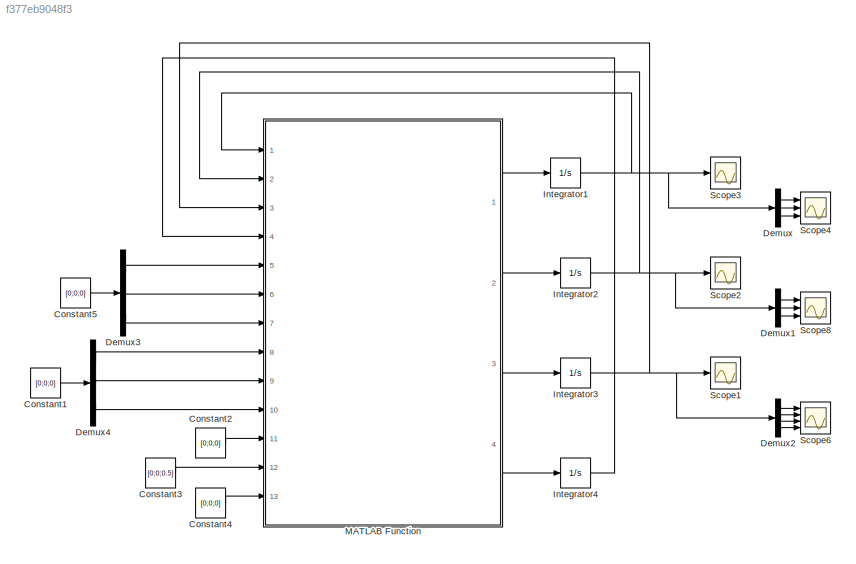
MODEL slx_f377eb9048f3
KIND model
CONFIG AbsTol = auto
CONFIG EnableMultiTasking = off
CONFIG FixedStep = auto
CONFIG MaxStep = auto
CONFIG MinStep = auto
CONFIG RelTol = 1e-3
CONFIG SampleTimeConstraint = Unconstrained
CONFIG SolverName = VariableStepAuto
CONFIG StartTime = 0.0
CONFIG StopTime = 10.0
BLOCK [Constant] Constant1
  Value = [0;0;0]
  VectorParams1D = off
BLOCK [Constant] Constant2
  Value = [0;0;0]
  VectorParams1D = off
BLOCK [Constant] Constant3
  Value = [0;0;0.5]
  VectorParams1D = off
BLOCK [Constant] Constant4
  Value = [0;0;0]
  VectorParams1D = off
BLOCK [Constant] Constant5
  Value = [0;0;0]
  VectorParams1D = off
BLOCK [Demux] Demux
  Outputs = 3
  Ports = [1, 3]
BLOCK [Demux] Demux1
  Outputs = 3
  Ports = [1, 3]
BLOCK [Demux] Demux2
  Ports = [1, 4]
BLOCK [Demux] Demux3
  Outputs = 3
  Ports = [1, 3]
BLOCK [Demux] Demux4
  Outputs = 3
  Ports = [1, 3]
BLOCK [Integrator] Integrator1
  InitialCondition = [0;0;0]
  Ports = [1, 1]
BLOCK [Integrator] Integrator2
  InitialCondition = [0;0;0]
  Ports = [1, 1]
BLOCK [Integrator] Integrator3
  InitialCondition = [0;0;0;0]
  Ports = [1, 1]
BLOCK [Integrator] Integrator4
  InitialCondition = [0;0;0]
  Ports = [1, 1]
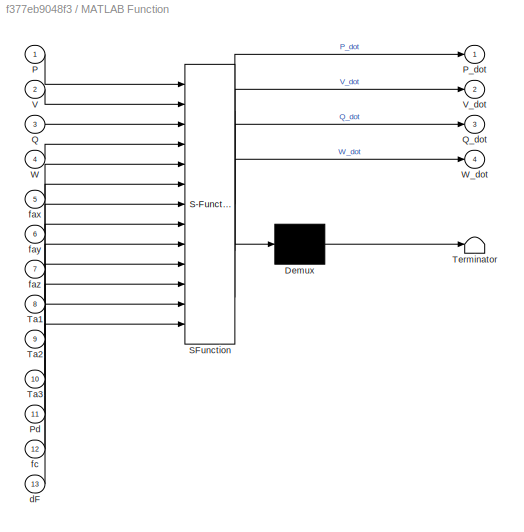
BLOCK [SubSystem] MATLAB Function
  ErrorFcn = Stateflow.Translate.translate
  PermitHierarchicalResolution = ExplicitOnly
  Ports = [13, 4]
  RequestExecContextInheritance = off
  SFBlockType = MATLAB Function
  TreatAsAtomicUnit = on
BLOCK [Demux] MATLAB Function/ Demux 
  Outputs = 1
  Ports = [1, 1]
BLOCK [S-Function] MATLAB Function/ SFunction 
  EnableBusSupport = on
  FunctionName = sf_sfun
  PortCounts = [13 5]
  Ports = [13, 5]
  SFcnIsStateOwnerBlock = off
  SFunctionDeploymentMode = off
  Tag = Stateflow S-Function 2
BLOCK [Terminator] MATLAB Function/ Terminator 
BLOCK [Inport] MATLAB Function/P
BLOCK [Outport] MATLAB Function/P_dot
BLOCK [Inport] MATLAB Function/Pd
  Port = 11
BLOCK [Inport] MATLAB Function/Q
  Port = 3
BLOCK [Outport] MATLAB Function/Q_dot
  Port = 3
BLOCK [Inport] MATLAB Function/Ta1
  Port = 8
BLOCK [Inport] MATLAB Function/Ta2
  Port = 9
BLOCK [Inport] MATLAB Function/Ta3
  Port = 10
BLOCK [Inport] MATLAB Function/V
  Port = 2
BLOCK [Outport] MATLAB Function/V_dot
  Port = 2
BLOCK [Inport] MATLAB Function/W
  Port = 4
BLOCK [Outport] MATLAB Function/W_dot
  Port = 4
BLOCK [Inport] MATLAB Function/dF
  Port = 13
BLOCK [Inport] MATLAB Function/fax
  Port = 5
BLOCK [Inport] MATLAB Function/fay
  Port = 6
BLOCK [Inport] MATLAB Function/faz
  Port = 7
BLOCK [Inport] MATLAB Function/fc
  Port = 12
BLOCK [Scope] Scope1
  Floating = off
  NumInputPorts = 1
  Ports = [1]
  ScopeSpecificationString = Simulink.scopes.TimeScopeBlockCfg('CurrentConfiguration', extmgr.ConfigurationSet(extmgr.Configuration('Core','General UI',true),extmgr.Configuration('Core','Source UI',true),extmgr.Configuration('Sources','WiredSimulink',true,'DataLoggingVariableName','ScopeData1'),extmgr.Configuration('Visuals','Time Domain',true,'SerializedDisplays',{struct('MinYLimReal','-1.00000','MaxYLimReal','1.00000','YLab...<+1420ch>
BLOCK [Scope] Scope2
  Floating = off
  NumInputPorts = 1
  Ports = [1]
  ScopeSpecificationString = Simulink.scopes.TimeScopeBlockCfg('CurrentConfiguration', extmgr.ConfigurationSet(extmgr.Configuration('Core','General UI',true),extmgr.Configuration('Core','Source UI',true),extmgr.Configuration('Sources','WiredSimulink',true,'DataLoggingVariableName','ScopeData2'),extmgr.Configuration('Visuals','Time Domain',true,'SerializedDisplays',{struct('MinYLimReal','-0.71145','MaxYLimReal','0.65564','YLab...<+1404ch>
BLOCK [Scope] Scope3
  Floating = off
  NumInputPorts = 1
  Ports = [1]
  ScopeSpecificationString = Simulink.scopes.TimeScopeBlockCfg('CurrentConfiguration', extmgr.ConfigurationSet(extmgr.Configuration('Core','General UI',true),extmgr.Configuration('Core','Source UI',true),extmgr.Configuration('Sources','WiredSimulink',true,'DataLoggingVariableName','ScopeData3'),extmgr.Configuration('Visuals','Time Domain',true,'SerializedDisplays',{struct('MinYLimReal','-3.51064','MaxYLimReal','6.64602','YLab...<+1432ch>
BLOCK [Scope] Scope4
  Floating = off
  NumInputPorts = 3
  Ports = [3]
  ScopeSpecificationString = Simulink.scopes.TimeScopeBlockCfg('CurrentConfiguration', extmgr.ConfigurationSet(extmgr.Configuration('Core','General UI',true,'FigureColor',[1 1 1]),extmgr.Configuration('Core','Source UI',true),extmgr.Configuration('Sources','WiredSimulink',true,'DataLoggingVariableName','ScopeData4'),extmgr.Configuration('Visuals','Time Domain',true,'SerializedDisplays',{struct('MinYLimReal','-2663848894135859...<+3100ch>
BLOCK [Scope] Scope6
  Floating = off
  NumInputPorts = 4
  Ports = [4]
  ScopeSpecificationString = Simulink.scopes.TimeScopeBlockCfg('CurrentConfiguration', extmgr.ConfigurationSet(extmgr.Configuration('Core','General UI',true,'FigureColor',[1 1 1]),extmgr.Configuration('Core','Source UI',true),extmgr.Configuration('Sources','WiredSimulink',true,'DataLoggingVariableName','ScopeData5'),extmgr.Configuration('Visuals','Time Domain',true,'SerializedDisplays',{struct('MinYLimReal','-1.00000','MaxYLi...<+4162ch>
BLOCK [Scope] Scope8
  Floating = off
  NumInputPorts = 3
  Ports = [3]
  ScopeSpecificationString = Simulink.scopes.TimeScopeBlockCfg('CurrentConfiguration', extmgr.ConfigurationSet(extmgr.Configuration('Core','General UI',true,'FigureColor',[1 1 1]),extmgr.Configuration('Core','Source UI',true),extmgr.Configuration('Sources','WiredSimulink',true),extmgr.Configuration('Visuals','Time Domain',true,'SerializedDisplays',{struct('MinYLimReal','-1949012797850908416.00000','MaxYLimReal','2165569775389...<+3065ch>
LINE Constant1:1 -> Demux4:1
LINE Constant2:1 -> MATLAB Function:11
LINE Constant3:1 -> MATLAB Function:12
LINE Constant4:1 -> MATLAB Function:13
LINE Constant5:1 -> Demux3:1
LINE Demux1:1 -> Scope8:1
LINE Demux1:2 -> Scope8:2
LINE Demux1:3 -> Scope8:3
LINE Demux2:1 -> Scope6:1
LINE Demux2:2 -> Scope6:2
LINE Demux2:3 -> Scope6:3
LINE Demux2:4 -> Scope6:4
LINE Demux3:1 -> MATLAB Function:5
LINE Demux3:2 -> MATLAB Function:6
LINE Demux3:3 -> MATLAB Function:7
LINE Demux4:1 -> MATLAB Function:8
LINE Demux4:2 -> MATLAB Function:9
LINE Demux4:3 -> MATLAB Function:10
LINE Demux:1 -> Scope4:1
LINE Demux:2 -> Scope4:2
LINE Demux:3 -> Scope4:3
NET Integrator1:1 -> Demux:1, MATLAB Function:1, Scope3:1
NET Integrator2:1 -> Demux1:1, MATLAB Function:2, Scope2:1
NET Integrator3:1 -> Demux2:1, MATLAB Function:3, Scope1:1
LINE Integrator4:1 -> MATLAB Function:4
LINE MATLAB Function:1 -> Integrator1:1
LINE MATLAB Function:2 -> Integrator2:1
LINE MATLAB Function:3 -> Integrator3:1
LINE MATLAB Function:4 -> Integrator4:1
note: NET lines group one-source signal fan-out (src -> all destinations, sorted); 1:1 wires keep LINE
CHART MATLAB Function states=1 transitions=1
  STATE_LABEL 'eML_blk_kernel()'
  STATE_LABEL 'SCRIPT:\nfunction [P_dot,V_dot,Q_dot,W_dot]= fcn(P,V,Q,W,fax,fay,faz,Ta1,Ta2,Ta3,Pd,fc,dF)\nclc\nm=5;\n\n% theta=Q(2);\n% phi=Q(3);\n% psi=Q(4);\n\n% Rz=[cos(psi) sin(psi) 0;-sin(psi)) cos(psi) 0;0 0 1];\n% Rx=[1 0 0;0 cos(theta) sin(theta);0 -sin(theta) cos(theta)];\n% Ry=[cos(phi) 0 sin(phi);0 1 0;-sin(phi) 0 cos(phi)];\n\nRz=[cos(Q(4)) sin(Q(4)) 0;-sin(Q(4)) cos(Q(4)) 0;0 0 1];\nRx=[1 0 0;0 cos(Q(2)) sin(Q(2...<+1008ch>'
CHART  states=0 transitions=0
